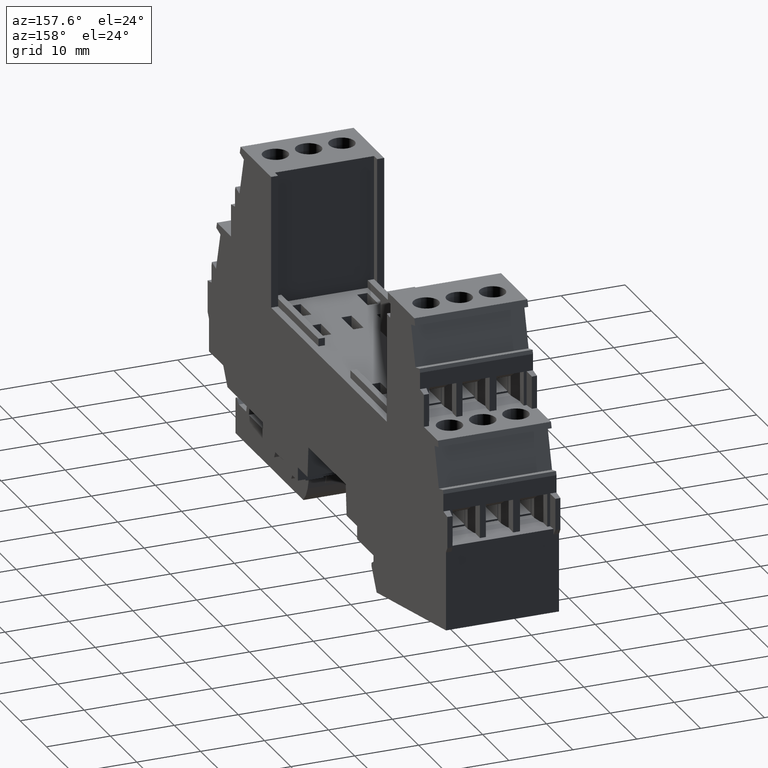
[diagram: clean part render]
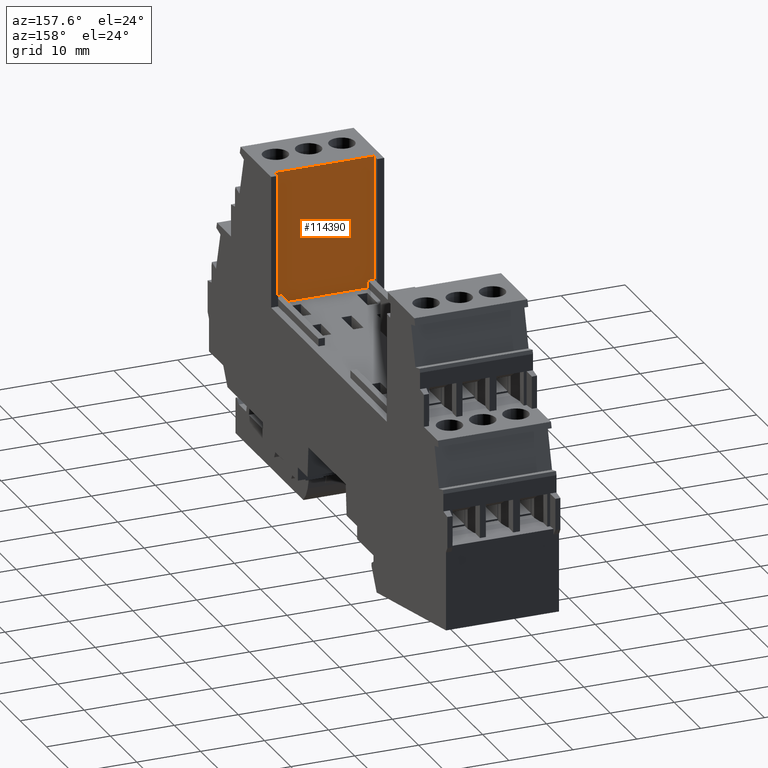
[diagram: same view with one face highlighted and labeled with its STEP entity id]
A machine part, auxiliary view. The second image highlights one B-rep face of the part: STEP entity #114390.
In plain terms, the highlighted planar face has unit normal (0, 1, 0).
Its self-contained STEP definition (entity closure, byte-faithful):
#109320=CARTESIAN_POINT('',(95.5530202398528,71.8738971793106,
-17.5383414494977));
#109330=VERTEX_POINT('',#109320);
#109360=CARTESIAN_POINT('',(95.5530202398528,71.8738971805772,
11.2750000031987));
#109370=DIRECTION('',(-1.96178160729168E-21,-4.39608926050624E-11,-1.));
#109380=VECTOR('',#109370,1.);
#109390=LINE('',#109360,#109380);
#109400=CARTESIAN_POINT('',(95.5530202398528,71.873897179992,
-2.0383414494975));
#109410=VERTEX_POINT('',#109400);
#109420=EDGE_CURVE('',#109410,#109330,#109390,.T.);
#113770=CARTESIAN_POINT('',(95.5530202398504,62.8351395002919,
-0.938341442257279));
#113780=DIRECTION('',(1.,-2.56261314530683E-13,-1.95051613116477E-21));
#113790=DIRECTION('',(2.56261314530683E-13,1.,-4.39608926050624E-11));
#113800=AXIS2_PLACEMENT_3D('',#113770,#113780,#113790);
#113810=PLANE('',#113800);
#113820=CARTESIAN_POINT('',(95.5530202398478,52.3748719527419,
11.2750000031908));
#113830=DIRECTION('',(1.96178160729168E-21,4.39608926050624E-11,1.));
#113840=VECTOR('',#113830,1.);
#113850=LINE('',#113820,#113840);
#113860=CARTESIAN_POINT('',(95.5530202398478,52.3748719514752,
-17.5383414486405));
#113870=VERTEX_POINT('',#113860);
#113880=CARTESIAN_POINT('',(95.5530202398478,52.3748719515192,
-16.5383414486425));
#113890=VERTEX_POINT('',#113880);
#113900=EDGE_CURVE('',#113870,#113890,#113850,.T.);
#113910=ORIENTED_EDGE('',*,*,#113900,.F.);
#113920=CARTESIAN_POINT('',(95.553020239842,30.0424286100183,
-16.5383414476607));
#113930=DIRECTION('',(-2.56261314530682E-13,-1.,4.39608926050624E-11));
#113940=VECTOR('',#113930,1.);
#113950=LINE('',#113920,#113940);
#113960=CARTESIAN_POINT('',(95.5530202398475,51.1748719511731,
-16.5383414485897));
#113970=VERTEX_POINT('',#113960);
#113980=EDGE_CURVE('',#113890,#113970,#113950,.T.);
#113990=ORIENTED_EDGE('',*,*,#113980,.F.);
#114000=CARTESIAN_POINT('',(95.5530202398475,51.1748719523958,
11.2750000031903));
#114010=DIRECTION('',(1.96178160729168E-21,4.39608926050624E-11,1.));
#114020=VECTOR('',#114010,1.);
#114030=LINE('',#114000,#114020);
#114040=CARTESIAN_POINT('',(95.5530202398475,51.1748719517665,
-3.03834144858973));
#114050=VERTEX_POINT('',#114040);
#114060=EDGE_CURVE('',#113970,#114050,#114030,.T.);
#114070=ORIENTED_EDGE('',*,*,#114060,.F.);
#114080=CARTESIAN_POINT('',(95.553020239842,30.0424286100128,
-3.03834144766073));
#114090=DIRECTION('',(2.56261314530682E-13,1.,-4.39608926050624E-11));
#114100=VECTOR('',#114090,1.);
#114110=LINE('',#114080,#114100);
#114120=CARTESIAN_POINT('',(95.5530202398478,52.3748719521126,
-3.03834144864249));
#114130=VERTEX_POINT('',#114120);
#114140=EDGE_CURVE('',#114050,#114130,#114110,.T.);
#114150=ORIENTED_EDGE('',*,*,#114140,.F.);
#114160=CARTESIAN_POINT('',(95.5530202398478,52.3748719527419,
11.2750000031908));
#114170=DIRECTION('',(1.96178160729168E-21,4.39608926050624E-11,1.));
#114180=VECTOR('',#114170,1.);
#114190=LINE('',#114160,#114180);
#114200=CARTESIAN_POINT('',(95.5530202398478,52.3748719521566,
-2.03834144864031));
#114210=VERTEX_POINT('',#114200);
#114220=EDGE_CURVE('',#114130,#114210,#114190,.T.);
#114230=ORIENTED_EDGE('',*,*,#114220,.F.);
#114240=CARTESIAN_POINT('',(95.553020239842,30.0424286100124,
-2.03834144765855));
#114250=DIRECTION('',(2.56261314530682E-13,1.,-4.39608926050624E-11));
#114260=VECTOR('',#114250,1.);
#114270=LINE('',#114240,#114260);
#114280=EDGE_CURVE('',#114210,#109410,#114270,.T.);
#114290=ORIENTED_EDGE('',*,*,#114280,.F.);
#114300=ORIENTED_EDGE('',*,*,#109420,.F.);
#114310=CARTESIAN_POINT('',(95.553020239842,30.0424286100187,
-17.5383414476588));
#114320=DIRECTION('',(-2.56261314530682E-13,-1.,4.39608926050624E-11));
#114330=VECTOR('',#114320,1.);
#114340=LINE('',#114310,#114330);
#114350=EDGE_CURVE('',#109330,#113870,#114340,.T.);
#114360=ORIENTED_EDGE('',*,*,#114350,.F.);
#114370=EDGE_LOOP('',(#114360,#114300,#114290,#114230,#114150,#114070,
#113990,#113910));
#114380=FACE_OUTER_BOUND('',#114370,.T.);
#114390=ADVANCED_FACE('',(#114380),#113810,.T.);